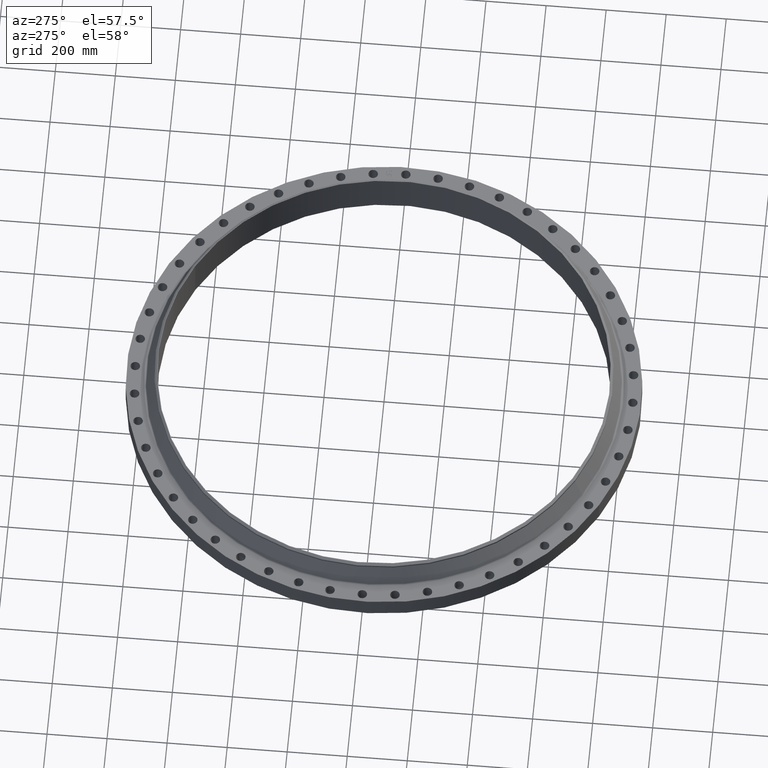
[diagram: clean part render]
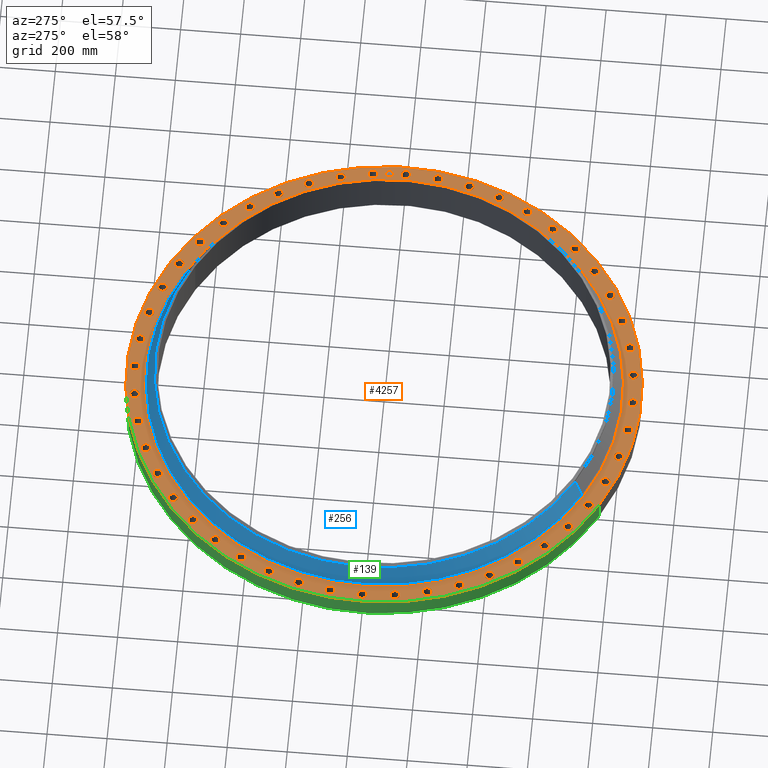
[diagram: same view with three faces highlighted in distinct colors, each labeled with its STEP entity id]
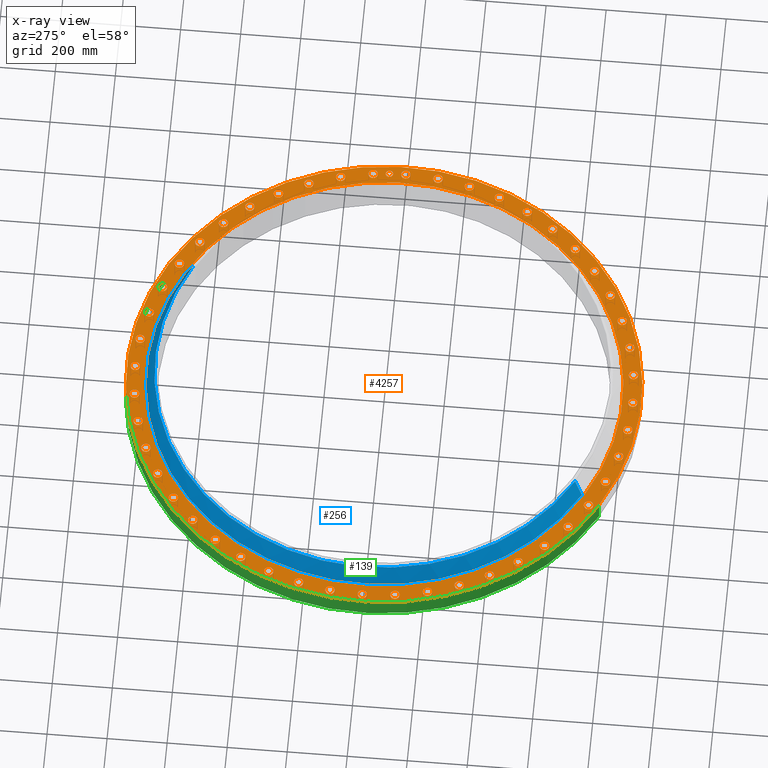
[diagram: x-ray of the same camera — body ghosted, the three highlighted faces saturated]
A machine part, auxiliary view with three faces highlighted in distinct colors.
The next image is the same camera in x-ray (body ghosted, the three faces saturated) — at least one of them is partly hidden behind the body in this view.
Their STEP definitions:

[orange] entity #4257 — the highlighted planar face has unit normal (0, 0, -1).
#65=AXIS2_PLACEMENT_3D('Circle Axis2P3D',#63,#64,$) ;
#89=AXIS2_PLACEMENT_3D('Circle Axis2P3D',#87,#88,$) ;
#123=AXIS2_PLACEMENT_3D('Circle Axis2P3D',#121,#122,$) ;
#147=AXIS2_PLACEMENT_3D('Circle Axis2P3D',#145,#146,$) ;
#164=AXIS2_PLACEMENT_3D('Circle Axis2P3D',#162,#163,$) ;
#199=AXIS2_PLACEMENT_3D('Circle Axis2P3D',#197,#198,$) ;
#1987=AXIS2_PLACEMENT_3D('Circle Axis2P3D',#1985,#1986,$) ;
#1999=AXIS2_PLACEMENT_3D('Circle Axis2P3D',#1997,#1998,$) ;
#2031=AXIS2_PLACEMENT_3D('Circle Axis2P3D',#2029,#2030,$) ;
#2043=AXIS2_PLACEMENT_3D('Circle Axis2P3D',#2041,#2042,$) ;
#2075=AXIS2_PLACEMENT_3D('Circle Axis2P3D',#2073,#2074,$) ;
#2087=AXIS2_PLACEMENT_3D('Circle Axis2P3D',#2085,#2086,$) ;
#2119=AXIS2_PLACEMENT_3D('Circle Axis2P3D',#2117,#2118,$) ;
#2131=AXIS2_PLACEMENT_3D('Circle Axis2P3D',#2129,#2130,$) ;
#2163=AXIS2_PLACEMENT_3D('Circle Axis2P3D',#2161,#2162,$) ;
#2175=AXIS2_PLACEMENT_3D('Circle Axis2P3D',#2173,#2174,$) ;
#2207=AXIS2_PLACEMENT_3D('Circle Axis2P3D',#2205,#2206,$) ;
#2219=AXIS2_PLACEMENT_3D('Circle Axis2P3D',#2217,#2218,$) ;
#2251=AXIS2_PLACEMENT_3D('Circle Axis2P3D',#2249,#2250,$) ;
#2263=AXIS2_PLACEMENT_3D('Circle Axis2P3D',#2261,#2262,$) ;
#2295=AXIS2_PLACEMENT_3D('Circle Axis2P3D',#2293,#2294,$) ;
#2307=AXIS2_PLACEMENT_3D('Circle Axis2P3D',#2305,#2306,$) ;
#2339=AXIS2_PLACEMENT_3D('Circle Axis2P3D',#2337,#2338,$) ;
#2351=AXIS2_PLACEMENT_3D('Circle Axis2P3D',#2349,#2350,$) ;
#2383=AXIS2_PLACEMENT_3D('Circle Axis2P3D',#2381,#2382,$) ;
#2395=AXIS2_PLACEMENT_3D('Circle Axis2P3D',#2393,#2394,$) ;
#2427=AXIS2_PLACEMENT_3D('Circle Axis2P3D',#2425,#2426,$) ;
#2439=AXIS2_PLACEMENT_3D('Circle Axis2P3D',#2437,#2438,$) ;
#2471=AXIS2_PLACEMENT_3D('Circle Axis2P3D',#2469,#2470,$) ;
#2483=AXIS2_PLACEMENT_3D('Circle Axis2P3D',#2481,#2482,$) ;
#2515=AXIS2_PLACEMENT_3D('Circle Axis2P3D',#2513,#2514,$) ;
#2527=AXIS2_PLACEMENT_3D('Circle Axis2P3D',#2525,#2526,$) ;
#2559=AXIS2_PLACEMENT_3D('Circle Axis2P3D',#2557,#2558,$) ;
#2571=AXIS2_PLACEMENT_3D('Circle Axis2P3D',#2569,#2570,$) ;
#2603=AXIS2_PLACEMENT_3D('Circle Axis2P3D',#2601,#2602,$) ;
#2615=AXIS2_PLACEMENT_3D('Circle Axis2P3D',#2613,#2614,$) ;
#2647=AXIS2_PLACEMENT_3D('Circle Axis2P3D',#2645,#2646,$) ;
#2659=AXIS2_PLACEMENT_3D('Circle Axis2P3D',#2657,#2658,$) ;
#2691=AXIS2_PLACEMENT_3D('Circle Axis2P3D',#2689,#2690,$) ;
#2703=AXIS2_PLACEMENT_3D('Circle Axis2P3D',#2701,#2702,$) ;
#2735=AXIS2_PLACEMENT_3D('Circle Axis2P3D',#2733,#2734,$) ;
#2747=AXIS2_PLACEMENT_3D('Circle Axis2P3D',#2745,#2746,$) ;
#2779=AXIS2_PLACEMENT_3D('Circle Axis2P3D',#2777,#2778,$) ;
#2791=AXIS2_PLACEMENT_3D('Circle Axis2P3D',#2789,#2790,$) ;
#2823=AXIS2_PLACEMENT_3D('Circle Axis2P3D',#2821,#2822,$) ;
#2835=AXIS2_PLACEMENT_3D('Circle Axis2P3D',#2833,#2834,$) ;
#2867=AXIS2_PLACEMENT_3D('Circle Axis2P3D',#2865,#2866,$) ;
#2879=AXIS2_PLACEMENT_3D('Circle Axis2P3D',#2877,#2878,$) ;
#2911=AXIS2_PLACEMENT_3D('Circle Axis2P3D',#2909,#2910,$) ;
#2923=AXIS2_PLACEMENT_3D('Circle Axis2P3D',#2921,#2922,$) ;
#2955=AXIS2_PLACEMENT_3D('Circle Axis2P3D',#2953,#2954,$) ;
#2967=AXIS2_PLACEMENT_3D('Circle Axis2P3D',#2965,#2966,$) ;
#2999=AXIS2_PLACEMENT_3D('Circle Axis2P3D',#2997,#2998,$) ;
#3011=AXIS2_PLACEMENT_3D('Circle Axis2P3D',#3009,#3010,$) ;
#3043=AXIS2_PLACEMENT_3D('Circle Axis2P3D',#3041,#3042,$) ;
#3055=AXIS2_PLACEMENT_3D('Circle Axis2P3D',#3053,#3054,$) ;
#3087=AXIS2_PLACEMENT_3D('Circle Axis2P3D',#3085,#3086,$) ;
#3099=AXIS2_PLACEMENT_3D('Circle Axis2P3D',#3097,#3098,$) ;
#3131=AXIS2_PLACEMENT_3D('Circle Axis2P3D',#3129,#3130,$) ;
#3143=AXIS2_PLACEMENT_3D('Circle Axis2P3D',#3141,#3142,$) ;
#3175=AXIS2_PLACEMENT_3D('Circle Axis2P3D',#3173,#3174,$) ;
#3187=AXIS2_PLACEMENT_3D('Circle Axis2P3D',#3185,#3186,$) ;
#3219=AXIS2_PLACEMENT_3D('Circle Axis2P3D',#3217,#3218,$) ;
#3231=AXIS2_PLACEMENT_3D('Circle Axis2P3D',#3229,#3230,$) ;
#3263=AXIS2_PLACEMENT_3D('Circle Axis2P3D',#3261,#3262,$) ;
#3275=AXIS2_PLACEMENT_3D('Circle Axis2P3D',#3273,#3274,$) ;
#3307=AXIS2_PLACEMENT_3D('Circle Axis2P3D',#3305,#3306,$) ;
#3319=AXIS2_PLACEMENT_3D('Circle Axis2P3D',#3317,#3318,$) ;
#3351=AXIS2_PLACEMENT_3D('Circle Axis2P3D',#3349,#3350,$) ;
#3363=AXIS2_PLACEMENT_3D('Circle Axis2P3D',#3361,#3362,$) ;
#3395=AXIS2_PLACEMENT_3D('Circle Axis2P3D',#3393,#3394,$) ;
#3407=AXIS2_PLACEMENT_3D('Circle Axis2P3D',#3405,#3406,$) ;
#3439=AXIS2_PLACEMENT_3D('Circle Axis2P3D',#3437,#3438,$) ;
#3451=AXIS2_PLACEMENT_3D('Circle Axis2P3D',#3449,#3450,$) ;
#3483=AXIS2_PLACEMENT_3D('Circle Axis2P3D',#3481,#3482,$) ;
#3495=AXIS2_PLACEMENT_3D('Circle Axis2P3D',#3493,#3494,$) ;
#3527=AXIS2_PLACEMENT_3D('Circle Axis2P3D',#3525,#3526,$) ;
#3539=AXIS2_PLACEMENT_3D('Circle Axis2P3D',#3537,#3538,$) ;
#3571=AXIS2_PLACEMENT_3D('Circle Axis2P3D',#3569,#3570,$) ;
#3583=AXIS2_PLACEMENT_3D('Circle Axis2P3D',#3581,#3582,$) ;
#3615=AXIS2_PLACEMENT_3D('Circle Axis2P3D',#3613,#3614,$) ;
#3627=AXIS2_PLACEMENT_3D('Circle Axis2P3D',#3625,#3626,$) ;
#3659=AXIS2_PLACEMENT_3D('Circle Axis2P3D',#3657,#3658,$) ;
#3671=AXIS2_PLACEMENT_3D('Circle Axis2P3D',#3669,#3670,$) ;
#3703=AXIS2_PLACEMENT_3D('Circle Axis2P3D',#3701,#3702,$) ;
#3715=AXIS2_PLACEMENT_3D('Circle Axis2P3D',#3713,#3714,$) ;
#3747=AXIS2_PLACEMENT_3D('Circle Axis2P3D',#3745,#3746,$) ;
#3759=AXIS2_PLACEMENT_3D('Circle Axis2P3D',#3757,#3758,$) ;
#3791=AXIS2_PLACEMENT_3D('Circle Axis2P3D',#3789,#3790,$) ;
#3803=AXIS2_PLACEMENT_3D('Circle Axis2P3D',#3801,#3802,$) ;
#3835=AXIS2_PLACEMENT_3D('Circle Axis2P3D',#3833,#3834,$) ;
#3847=AXIS2_PLACEMENT_3D('Circle Axis2P3D',#3845,#3846,$) ;
#3879=AXIS2_PLACEMENT_3D('Circle Axis2P3D',#3877,#3878,$) ;
#3891=AXIS2_PLACEMENT_3D('Circle Axis2P3D',#3889,#3890,$) ;
#3923=AXIS2_PLACEMENT_3D('Circle Axis2P3D',#3921,#3922,$) ;
#3935=AXIS2_PLACEMENT_3D('Circle Axis2P3D',#3933,#3934,$) ;
#3967=AXIS2_PLACEMENT_3D('Circle Axis2P3D',#3965,#3966,$) ;
#3979=AXIS2_PLACEMENT_3D('Circle Axis2P3D',#3977,#3978,$) ;
#4011=AXIS2_PLACEMENT_3D('Circle Axis2P3D',#4009,#4010,$) ;
#4023=AXIS2_PLACEMENT_3D('Circle Axis2P3D',#4021,#4022,$) ;
#4037=AXIS2_PLACEMENT_3D('Plane Axis2P3D',#4034,#4035,#4036) ;
#4241=AXIS2_PLACEMENT_3D('Circle Axis2P3D',#4239,#4240,$) ;
#4250=AXIS2_PLACEMENT_3D('Circle Axis2P3D',#4248,#4249,$) ;
#46=CARTESIAN_POINT('Vertex',(32.0765108989,0.299640961629,2.75000000001)) ;
#60=CARTESIAN_POINT('Vertex',(33.1734891013,-0.299640961629,2.75000000001)) ;
#63=CARTESIAN_POINT('Axis2P3D Location',(32.6250000001,0.,2.75000000001)) ;
#87=CARTESIAN_POINT('Axis2P3D Location',(32.6250000001,0.,2.75000000001)) ;
#118=CARTESIAN_POINT('Vertex',(-16.180611928,-29.6184114639,2.75000000001)) ;
#121=CARTESIAN_POINT('Axis2P3D Location',(0.,0.,2.75000000001)) ;
#125=CARTESIAN_POINT('Vertex',(16.180611928,29.6184114639,2.75000000001)) ;
#145=CARTESIAN_POINT('Axis2P3D Location',(0.,0.,2.75000000001)) ;
#162=CARTESIAN_POINT('Axis2P3D Location',(0.,0.,2.75000000001)) ;
#166=CARTESIAN_POINT('Vertex',(14.9999204068,27.4571701313,2.75000000001)) ;
#168=CARTESIAN_POINT('Vertex',(-14.9999204068,-27.4571701313,2.75000000001)) ;
#197=CARTESIAN_POINT('Axis2P3D Location',(0.,0.,2.75000000001)) ;
#1975=CARTESIAN_POINT('Vertex',(-32.0765108989,-0.299640961629,2.75000000001)) ;
#1982=CARTESIAN_POINT('Vertex',(-33.1734891013,0.299640961629,2.75000000001)) ;
#1985=CARTESIAN_POINT('Axis2P3D Location',(-32.6250000001,-3.99541018223E-015,2.75000000001)) ;
#1997=CARTESIAN_POINT('Axis2P3D Location',(-32.6250000001,-3.99541018223E-015,2.75000000001)) ;
#2019=CARTESIAN_POINT('Vertex',(31.7629809078,4.48390231901,2.75000000001)) ;
#2026=CARTESIAN_POINT('Vertex',(32.9287962971,4.03293172338,2.75000000001)) ;
#2029=CARTESIAN_POINT('Axis2P3D Location',(32.3458886024,4.2584170212,2.75000000001)) ;
#2041=CARTESIAN_POINT('Axis2P3D Location',(32.3458886024,4.2584170212,2.75000000001)) ;
#2063=CARTESIAN_POINT('Vertex',(-31.7629809078,-4.48390231901,2.75000000001)) ;
#2070=CARTESIAN_POINT('Vertex',(-32.9287962971,-4.03293172338,2.75000000001)) ;
#2073=CARTESIAN_POINT('Axis2P3D Location',(-32.3458886024,-4.2584170212,2.75000000001)) ;
#2085=CARTESIAN_POINT('Axis2P3D Location',(-32.3458886024,-4.2584170212,2.75000000001)) ;
#2107=CARTESIAN_POINT('Vertex',(31.8412028953,-3.88974733568,2.75000000001)) ;
#2114=CARTESIAN_POINT('Vertex',(32.8505743096,-4.62708670671,2.75000000001)) ;
#2117=CARTESIAN_POINT('Axis2P3D Location',(32.3458886024,-4.2584170212,2.75000000001)) ;
#2129=CARTESIAN_POINT('Axis2P3D Location',(32.3458886024,-4.2584170212,2.75000000001)) ;
#2151=CARTESIAN_POINT('Vertex',(29.5201642622,12.5519814407,2.75000000001)) ;
#2158=CARTESIAN_POINT('Vertex',(30.7629752344,12.4181125213,2.75000000001)) ;
#2161=CARTESIAN_POINT('Axis2P3D Location',(30.1415697483,12.485046981,2.75000000001)) ;
#2173=CARTESIAN_POINT('Axis2P3D Location',(30.1415697483,12.485046981,2.75000000001)) ;
#2195=CARTESIAN_POINT('Vertex',(-16.2977521343,27.6292528224,2.75000000001)) ;
#2202=CARTESIAN_POINT('Vertex',(-16.3272478659,28.8789047747,2.75000000001)) ;
#2205=CARTESIAN_POINT('Axis2P3D Location',(-16.3125000001,28.2540787986,2.75000000001)) ;
#2217=CARTESIAN_POINT('Axis2P3D Location',(-16.3125000001,28.2540787986,2.75000000001)) ;
#2239=CARTESIAN_POINT('Vertex',(15.7787587647,27.9288937841,2.75000000001)) ;
#2246=CARTESIAN_POINT('Vertex',(16.8462412354,28.5792638131,2.75000000001)) ;
#2249=CARTESIAN_POINT('Axis2P3D Location',(16.3125000001,28.2540787986,2.75000000001)) ;
#2261=CARTESIAN_POINT('Axis2P3D Location',(16.3125000001,28.2540787986,2.75000000001)) ;
#2283=CARTESIAN_POINT('Vertex',(29.7494995256,-11.9983171376,2.75000000001)) ;
#2290=CARTESIAN_POINT('Vertex',(30.533639971,-12.9717768244,2.75000000001)) ;
#2293=CARTESIAN_POINT('Axis2P3D Location',(30.1415697483,-12.485046981,2.75000000001)) ;
#2305=CARTESIAN_POINT('Axis2P3D Location',(30.1415697483,-12.485046981,2.75000000001)) ;
#2327=CARTESIAN_POINT('Vertex',(-27.9288937841,15.7787587647,2.75000000001)) ;
#2334=CARTESIAN_POINT('Vertex',(-28.5792638131,16.8462412354,2.75000000001)) ;
#2337=CARTESIAN_POINT('Axis2P3D Location',(-28.2540787986,16.3125000001,2.75000000001)) ;
#2349=CARTESIAN_POINT('Axis2P3D Location',(-28.2540787986,16.3125000001,2.75000000001)) ;
#2371=CARTESIAN_POINT('Vertex',(27.9288937841,-15.7787587647,2.75000000001)) ;
#2378=CARTESIAN_POINT('Vertex',(28.5792638131,-16.8462412354,2.75000000001)) ;
#2381=CARTESIAN_POINT('Axis2P3D Location',(28.2540787986,-16.3125000001,2.75000000001)) ;
#2393=CARTESIAN_POINT('Axis2P3D Location',(28.2540787986,-16.3125000001,2.75000000001)) ;
#2415=CARTESIAN_POINT('Vertex',(-0.299640961629,32.0765108989,2.75000000001)) ;
#2422=CARTESIAN_POINT('Vertex',(0.299640961629,33.1734891013,2.75000000001)) ;
#2425=CARTESIAN_POINT('Axis2P3D Location',(-5.99311527335E-015,32.6250000001,2.75000000001)) ;
#2437=CARTESIAN_POINT('Axis2P3D Location',(-5.99311527335E-015,32.6250000001,2.75000000001)) ;
#2459=CARTESIAN_POINT('Vertex',(25.6304169266,-19.2892214547,2.75000000001)) ;
#2466=CARTESIAN_POINT('Vertex',(26.1358885277,-20.4324617883,2.75000000001)) ;
#2469=CARTESIAN_POINT('Axis2P3D Location',(25.8831527271,-19.8608416215,2.75000000001)) ;
#2481=CARTESIAN_POINT('Axis2P3D Location',(25.8831527271,-19.8608416215,2.75000000001)) ;
#2503=CARTESIAN_POINT('Vertex',(27.6292528224,16.2977521343,2.75000000001)) ;
#2510=CARTESIAN_POINT('Vertex',(28.8789047747,16.3272478659,2.75000000001)) ;
#2513=CARTESIAN_POINT('Axis2P3D Location',(28.2540787986,16.3125000001,2.75000000001)) ;
#2525=CARTESIAN_POINT('Axis2P3D Location',(28.2540787986,16.3125000001,2.75000000001)) ;
#2547=CARTESIAN_POINT('Vertex',(22.8933965293,-22.4696402176,2.75000000001)) ;
#2554=CARTESIAN_POINT('Vertex',(23.2453209433,-23.669077255,2.75000000001)) ;
#2557=CARTESIAN_POINT('Axis2P3D Location',(23.0693587363,-23.0693587363,2.75000000001)) ;
#2569=CARTESIAN_POINT('Axis2P3D Location',(23.0693587363,-23.0693587363,2.75000000001)) ;
#2591=CARTESIAN_POINT('Vertex',(-31.0610830821,8.01258097763,2.75000000001)) ;
#2598=CARTESIAN_POINT('Vertex',(-31.9655770835,8.87536171537,2.75000000001)) ;
#2601=CARTESIAN_POINT('Axis2P3D Location',(-31.5133300828,8.4439713465,2.75000000001)) ;
#2613=CARTESIAN_POINT('Axis2P3D Location',(-31.5133300828,8.4439713465,2.75000000001)) ;
#2635=CARTESIAN_POINT('Vertex',(19.7646637703,-25.2655972066,2.75000000001)) ;
#2642=CARTESIAN_POINT('Vertex',(19.9570194727,-26.5007082476,2.75000000001)) ;
#2645=CARTESIAN_POINT('Axis2P3D Location',(19.8608416215,-25.8831527271,2.75000000001)) ;
#2657=CARTESIAN_POINT('Axis2P3D Location',(19.8608416215,-25.8831527271,2.75000000001)) ;
#2679=CARTESIAN_POINT('Vertex',(-22.8933965293,22.4696402176,2.75000000001)) ;
#2686=CARTESIAN_POINT('Vertex',(-23.2453209433,23.669077255,2.75000000001)) ;
#2689=CARTESIAN_POINT('Axis2P3D Location',(-23.0693587363,23.0693587363,2.75000000001)) ;
#2701=CARTESIAN_POINT('Axis2P3D Location',(-23.0693587363,23.0693587363,2.75000000001)) ;
#2723=CARTESIAN_POINT('Vertex',(16.2977521343,-27.6292528224,2.75000000001)) ;
#2730=CARTESIAN_POINT('Vertex',(16.3272478659,-28.8789047747,2.75000000001)) ;
#2733=CARTESIAN_POINT('Axis2P3D Location',(16.3125000001,-28.2540787986,2.75000000001)) ;
#2745=CARTESIAN_POINT('Axis2P3D Location',(16.3125000001,-28.2540787986,2.75000000001)) ;
#2767=CARTESIAN_POINT('Vertex',(-8.59144286454,30.905977507,2.75000000001)) ;
#2774=CARTESIAN_POINT('Vertex',(-8.29649982847,32.1206826586,2.75000000001)) ;
#2777=CARTESIAN_POINT('Axis2P3D Location',(-8.4439713465,31.5133300828,2.75000000001)) ;
#2789=CARTESIAN_POINT('Axis2P3D Location',(-8.4439713465,31.5133300828,2.75000000001)) ;
#2811=CARTESIAN_POINT('Vertex',(12.5519814407,-29.5201642622,2.75000000001)) ;
#2818=CARTESIAN_POINT('Vertex',(12.4181125213,-30.7629752344,2.75000000001)) ;
#2821=CARTESIAN_POINT('Axis2P3D Location',(12.485046981,-30.1415697483,2.75000000001)) ;
#2833=CARTESIAN_POINT('Axis2P3D Location',(12.485046981,-30.1415697483,2.75000000001)) ;
#2855=CARTESIAN_POINT('Vertex',(8.01258097763,31.0610830821,2.75000000001)) ;
#2862=CARTESIAN_POINT('Vertex',(8.87536171537,31.9655770835,2.75000000001)) ;
#2865=CARTESIAN_POINT('Axis2P3D Location',(8.4439713465,31.5133300828,2.75000000001)) ;
#2877=CARTESIAN_POINT('Axis2P3D Location',(8.4439713465,31.5133300828,2.75000000001)) ;
#2899=CARTESIAN_POINT('Vertex',(8.59144286454,-30.905977507,2.75000000001)) ;
#2906=CARTESIAN_POINT('Vertex',(8.29649982847,-32.1206826586,2.75000000001)) ;
#2909=CARTESIAN_POINT('Axis2P3D Location',(8.4439713465,-31.5133300828,2.75000000001)) ;
#2921=CARTESIAN_POINT('Axis2P3D Location',(8.4439713465,-31.5133300828,2.75000000001)) ;
#2943=CARTESIAN_POINT('Vertex',(22.4696402176,22.8933965293,2.75000000001)) ;
#2950=CARTESIAN_POINT('Vertex',(23.669077255,23.2453209433,2.75000000001)) ;
#2953=CARTESIAN_POINT('Axis2P3D Location',(23.0693587363,23.0693587363,2.75000000001)) ;
#2965=CARTESIAN_POINT('Axis2P3D Location',(23.0693587363,23.0693587363,2.75000000001)) ;
#2987=CARTESIAN_POINT('Vertex',(4.48390231901,-31.7629809078,2.75000000001)) ;
#2994=CARTESIAN_POINT('Vertex',(4.03293172338,-32.9287962971,2.75000000001)) ;
#2997=CARTESIAN_POINT('Axis2P3D Location',(4.2584170212,-32.3458886024,2.75000000001)) ;
#3009=CARTESIAN_POINT('Axis2P3D Location',(4.2584170212,-32.3458886024,2.75000000001)) ;
#3031=CARTESIAN_POINT('Vertex',(30.905977507,8.59144286454,2.75000000001)) ;
#3038=CARTESIAN_POINT('Vertex',(32.1206826586,8.29649982847,2.75000000001)) ;
#3041=CARTESIAN_POINT('Axis2P3D Location',(31.5133300828,8.4439713465,2.75000000001)) ;
#3053=CARTESIAN_POINT('Axis2P3D Location',(31.5133300828,8.4439713465,2.75000000001)) ;
#3075=CARTESIAN_POINT('Vertex',(0.299640961629,-32.0765108989,2.75000000001)) ;
#3082=CARTESIAN_POINT('Vertex',(-0.299640961629,-33.1734891013,2.75000000001)) ;
#3085=CARTESIAN_POINT('Axis2P3D Location',(1.99770509112E-015,-32.6250000001,2.75000000001)) ;
#3097=CARTESIAN_POINT('Axis2P3D Location',(1.99770509112E-015,-32.6250000001,2.75000000001)) ;
#3119=CARTESIAN_POINT('Vertex',(-31.8412028953,3.88974733568,2.75000000001)) ;
#3126=CARTESIAN_POINT('Vertex',(-32.8505743096,4.62708670671,2.75000000001)) ;
#3129=CARTESIAN_POINT('Axis2P3D Location',(-32.3458886024,4.2584170212,2.75000000001)) ;
#3141=CARTESIAN_POINT('Axis2P3D Location',(-32.3458886024,4.2584170212,2.75000000001)) ;
#3163=CARTESIAN_POINT('Vertex',(-3.88974733568,-31.8412028953,2.75000000001)) ;
#3170=CARTESIAN_POINT('Vertex',(-4.62708670671,-32.8505743096,2.75000000001)) ;
#3173=CARTESIAN_POINT('Axis2P3D Location',(-4.2584170212,-32.3458886024,2.75000000001)) ;
#3185=CARTESIAN_POINT('Axis2P3D Location',(-4.2584170212,-32.3458886024,2.75000000001)) ;
#3207=CARTESIAN_POINT('Vertex',(-29.7494995256,11.9983171376,2.75000000001)) ;
#3214=CARTESIAN_POINT('Vertex',(-30.533639971,12.9717768244,2.75000000001)) ;
#3217=CARTESIAN_POINT('Axis2P3D Location',(-30.1415697483,12.485046981,2.75000000001)) ;
#3229=CARTESIAN_POINT('Axis2P3D Location',(-30.1415697483,12.485046981,2.75000000001)) ;
#3251=CARTESIAN_POINT('Vertex',(-8.01258097763,-31.0610830821,2.75000000001)) ;
#3258=CARTESIAN_POINT('Vertex',(-8.87536171537,-31.9655770835,2.75000000001)) ;
#3261=CARTESIAN_POINT('Axis2P3D Location',(-8.4439713465,-31.5133300828,2.75000000001)) ;
#3273=CARTESIAN_POINT('Axis2P3D Location',(-8.4439713465,-31.5133300828,2.75000000001)) ;
#3295=CARTESIAN_POINT('Vertex',(-25.6304169266,19.2892214547,2.75000000001)) ;
#3302=CARTESIAN_POINT('Vertex',(-26.1358885277,20.4324617883,2.75000000001)) ;
#3305=CARTESIAN_POINT('Axis2P3D Location',(-25.8831527271,19.8608416215,2.75000000001)) ;
#3317=CARTESIAN_POINT('Axis2P3D Location',(-25.8831527271,19.8608416215,2.75000000001)) ;
#3339=CARTESIAN_POINT('Vertex',(-11.9983171376,-29.7494995256,2.75000000001)) ;
#3346=CARTESIAN_POINT('Vertex',(-12.9717768244,-30.533639971,2.75000000001)) ;
#3349=CARTESIAN_POINT('Axis2P3D Location',(-12.485046981,-30.1415697483,2.75000000001)) ;
#3361=CARTESIAN_POINT('Axis2P3D Location',(-12.485046981,-30.1415697483,2.75000000001)) ;
#3383=CARTESIAN_POINT('Vertex',(-19.7646637703,25.2655972066,2.75000000001)) ;
#3390=CARTESIAN_POINT('Vertex',(-19.9570194727,26.5007082476,2.75000000001)) ;
#3393=CARTESIAN_POINT('Axis2P3D Location',(-19.8608416215,25.8831527271,2.75000000001)) ;
#3405=CARTESIAN_POINT('Axis2P3D Location',(-19.8608416215,25.8831527271,2.75000000001)) ;
#3427=CARTESIAN_POINT('Vertex',(-15.7787587647,-27.9288937841,2.75000000001)) ;
#3434=CARTESIAN_POINT('Vertex',(-16.8462412354,-28.5792638131,2.75000000001)) ;
#3437=CARTESIAN_POINT('Axis2P3D Location',(-16.3125000001,-28.2540787986,2.75000000001)) ;
#3449=CARTESIAN_POINT('Axis2P3D Location',(-16.3125000001,-28.2540787986,2.75000000001)) ;
#3471=CARTESIAN_POINT('Vertex',(-12.5519814407,29.5201642622,2.75000000001)) ;
#3478=CARTESIAN_POINT('Vertex',(-12.4181125213,30.7629752344,2.75000000001)) ;
#3481=CARTESIAN_POINT('Axis2P3D Location',(-12.485046981,30.1415697483,2.75000000001)) ;
#3493=CARTESIAN_POINT('Axis2P3D Location',(-12.485046981,30.1415697483,2.75000000001)) ;
#3515=CARTESIAN_POINT('Vertex',(-19.2892214547,-25.6304169266,2.75000000001)) ;
#3522=CARTESIAN_POINT('Vertex',(-20.4324617883,-26.1358885277,2.75000000001)) ;
#3525=CARTESIAN_POINT('Axis2P3D Location',(-19.8608416215,-25.8831527271,2.75000000001)) ;
#3537=CARTESIAN_POINT('Axis2P3D Location',(-19.8608416215,-25.8831527271,2.75000000001)) ;
#3559=CARTESIAN_POINT('Vertex',(-4.48390231901,31.7629809078,2.75000000001)) ;
#3566=CARTESIAN_POINT('Vertex',(-4.03293172338,32.9287962971,2.75000000001)) ;
#3569=CARTESIAN_POINT('Axis2P3D Location',(-4.2584170212,32.3458886024,2.75000000001)) ;
#3581=CARTESIAN_POINT('Axis2P3D Location',(-4.2584170212,32.3458886024,2.75000000001)) ;
#3603=CARTESIAN_POINT('Vertex',(-22.4696402176,-22.8933965293,2.75000000001)) ;
#3610=CARTESIAN_POINT('Vertex',(-23.669077255,-23.2453209433,2.75000000001)) ;
#3613=CARTESIAN_POINT('Axis2P3D Location',(-23.0693587363,-23.0693587363,2.75000000001)) ;
#3625=CARTESIAN_POINT('Axis2P3D Location',(-23.0693587363,-23.0693587363,2.75000000001)) ;
#3647=CARTESIAN_POINT('Vertex',(3.88974733568,31.8412028953,2.75000000001)) ;
#3654=CARTESIAN_POINT('Vertex',(4.62708670671,32.8505743096,2.75000000001)) ;
#3657=CARTESIAN_POINT('Axis2P3D Location',(4.2584170212,32.3458886024,2.75000000001)) ;
#3669=CARTESIAN_POINT('Axis2P3D Location',(4.2584170212,32.3458886024,2.75000000001)) ;
#3691=CARTESIAN_POINT('Vertex',(-25.2655972066,-19.7646637703,2.75000000001)) ;
#3698=CARTESIAN_POINT('Vertex',(-26.5007082476,-19.9570194727,2.75000000001)) ;
#3701=CARTESIAN_POINT('Axis2P3D Location',(-25.8831527271,-19.8608416215,2.75000000001)) ;
#3713=CARTESIAN_POINT('Axis2P3D Location',(-25.8831527271,-19.8608416215,2.75000000001)) ;
#3735=CARTESIAN_POINT('Vertex',(11.9983171376,29.7494995256,2.75000000001)) ;
#3742=CARTESIAN_POINT('Vertex',(12.9717768244,30.533639971,2.75000000001)) ;
#3745=CARTESIAN_POINT('Axis2P3D Location',(12.485046981,30.1415697483,2.75000000001)) ;
#3757=CARTESIAN_POINT('Axis2P3D Location',(12.485046981,30.1415697483,2.75000000001)) ;
#3779=CARTESIAN_POINT('Vertex',(-27.6292528224,-16.2977521343,2.75000000001)) ;
#3786=CARTESIAN_POINT('Vertex',(-28.8789047747,-16.3272478659,2.75000000001)) ;
#3789=CARTESIAN_POINT('Axis2P3D Location',(-28.2540787986,-16.3125000001,2.75000000001)) ;
#3801=CARTESIAN_POINT('Axis2P3D Location',(-28.2540787986,-16.3125000001,2.75000000001)) ;
#3823=CARTESIAN_POINT('Vertex',(19.2892214547,25.6304169266,2.75000000001)) ;
#3830=CARTESIAN_POINT('Vertex',(20.4324617883,26.1358885277,2.75000000001)) ;
#3833=CARTESIAN_POINT('Axis2P3D Location',(19.8608416215,25.8831527271,2.75000000001)) ;
#3845=CARTESIAN_POINT('Axis2P3D Location',(19.8608416215,25.8831527271,2.75000000001)) ;
#3867=CARTESIAN_POINT('Vertex',(-29.5201642622,-12.5519814407,2.75000000001)) ;
#3874=CARTESIAN_POINT('Vertex',(-30.7629752344,-12.4181125213,2.75000000001)) ;
#3877=CARTESIAN_POINT('Axis2P3D Location',(-30.1415697483,-12.485046981,2.75000000001)) ;
#3889=CARTESIAN_POINT('Axis2P3D Location',(-30.1415697483,-12.485046981,2.75000000001)) ;
#3911=CARTESIAN_POINT('Vertex',(25.2655972066,19.7646637703,2.75000000001)) ;
#3918=CARTESIAN_POINT('Vertex',(26.5007082476,19.9570194727,2.75000000001)) ;
#3921=CARTESIAN_POINT('Axis2P3D Location',(25.8831527271,19.8608416215,2.75000000001)) ;
#3933=CARTESIAN_POINT('Axis2P3D Location',(25.8831527271,19.8608416215,2.75000000001)) ;
#3955=CARTESIAN_POINT('Vertex',(-30.905977507,-8.59144286454,2.75000000001)) ;
#3962=CARTESIAN_POINT('Vertex',(-32.1206826586,-8.29649982847,2.75000000001)) ;
#3965=CARTESIAN_POINT('Axis2P3D Location',(-31.5133300828,-8.4439713465,2.75000000001)) ;
#3977=CARTESIAN_POINT('Axis2P3D Location',(-31.5133300828,-8.4439713465,2.75000000001)) ;
#3999=CARTESIAN_POINT('Vertex',(31.0610830821,-8.01258097763,2.75000000001)) ;
#4006=CARTESIAN_POINT('Vertex',(31.9655770835,-8.87536171537,2.75000000001)) ;
#4009=CARTESIAN_POINT('Axis2P3D Location',(31.5133300828,-8.4439713465,2.75000000001)) ;
#4021=CARTESIAN_POINT('Axis2P3D Location',(31.5133300828,-8.4439713465,2.75000000001)) ;
#4034=CARTESIAN_POINT('Axis2P3D Location',(0.,33.7500000001,2.75000000001)) ;
#4239=CARTESIAN_POINT('Axis2P3D Location',(32.5551473708,2.13377709114,2.75000000001)) ;
#4243=CARTESIAN_POINT('Vertex',(32.5224458811,2.63270540921,2.75000000001)) ;
#4245=CARTESIAN_POINT('Vertex',(32.5878488605,1.63484877307,2.75000000001)) ;
#4248=CARTESIAN_POINT('Axis2P3D Location',(32.5551473708,2.13377709114,2.75000000001)) ;
#64=DIRECTION('Axis2P3D Direction',(0.,-0.,-0.0393700787402)) ;
#88=DIRECTION('Axis2P3D Direction',(0.,-0.,-0.0393700787402)) ;
#122=DIRECTION('Axis2P3D Direction',(0.,0.,-0.0393700787402)) ;
#146=DIRECTION('Axis2P3D Direction',(0.,0.,-0.0393700787402)) ;
#163=DIRECTION('Axis2P3D Direction',(0.,0.,-0.0393700787402)) ;
#198=DIRECTION('Axis2P3D Direction',(0.,0.,-0.0393700787402)) ;
#1986=DIRECTION('Axis2P3D Direction',(-0.,0.,-0.0393700787402)) ;
#1998=DIRECTION('Axis2P3D Direction',(-0.,0.,-0.0393700787402)) ;
#2030=DIRECTION('Axis2P3D Direction',(0.,0.,-0.0393700787402)) ;
#2042=DIRECTION('Axis2P3D Direction',(0.,0.,-0.0393700787402)) ;
#2074=DIRECTION('Axis2P3D Direction',(-0.,0.,-0.0393700787402)) ;
#2086=DIRECTION('Axis2P3D Direction',(-0.,0.,-0.0393700787402)) ;
#2118=DIRECTION('Axis2P3D Direction',(0.,-0.,-0.0393700787402)) ;
#2130=DIRECTION('Axis2P3D Direction',(0.,-0.,-0.0393700787402)) ;
#2162=DIRECTION('Axis2P3D Direction',(0.,0.,-0.0393700787402)) ;
#2174=DIRECTION('Axis2P3D Direction',(0.,0.,-0.0393700787402)) ;
#2206=DIRECTION('Axis2P3D Direction',(0.,0.,-0.0393700787402)) ;
#2218=DIRECTION('Axis2P3D Direction',(0.,0.,-0.0393700787402)) ;
#2250=DIRECTION('Axis2P3D Direction',(0.,0.,-0.0393700787402)) ;
#2262=DIRECTION('Axis2P3D Direction',(0.,0.,-0.0393700787402)) ;
#2294=DIRECTION('Axis2P3D Direction',(0.,-0.,-0.0393700787402)) ;
#2306=DIRECTION('Axis2P3D Direction',(0.,-0.,-0.0393700787402)) ;
#2338=DIRECTION('Axis2P3D Direction',(0.,0.,-0.0393700787402)) ;
#2350=DIRECTION('Axis2P3D Direction',(0.,0.,-0.0393700787402)) ;
#2382=DIRECTION('Axis2P3D Direction',(0.,-0.,-0.0393700787402)) ;
#2394=DIRECTION('Axis2P3D Direction',(0.,-0.,-0.0393700787402)) ;
#2426=DIRECTION('Axis2P3D Direction',(0.,0.,-0.0393700787402)) ;
#2438=DIRECTION('Axis2P3D Direction',(0.,0.,-0.0393700787402)) ;
#2470=DIRECTION('Axis2P3D Direction',(0.,-0.,-0.0393700787402)) ;
#2482=DIRECTION('Axis2P3D Direction',(0.,-0.,-0.0393700787402)) ;
#2514=DIRECTION('Axis2P3D Direction',(0.,0.,-0.0393700787402)) ;
#2526=DIRECTION('Axis2P3D Direction',(0.,0.,-0.0393700787402)) ;
#2558=DIRECTION('Axis2P3D Direction',(0.,-0.,-0.0393700787402)) ;
#2570=DIRECTION('Axis2P3D Direction',(0.,-0.,-0.0393700787402)) ;
#2602=DIRECTION('Axis2P3D Direction',(0.,0.,-0.0393700787402)) ;
#2614=DIRECTION('Axis2P3D Direction',(0.,0.,-0.0393700787402)) ;
#2646=DIRECTION('Axis2P3D Direction',(0.,-0.,-0.0393700787402)) ;
#2658=DIRECTION('Axis2P3D Direction',(0.,-0.,-0.0393700787402)) ;
#2690=DIRECTION('Axis2P3D Direction',(0.,0.,-0.0393700787402)) ;
#2702=DIRECTION('Axis2P3D Direction',(0.,0.,-0.0393700787402)) ;
#2734=DIRECTION('Axis2P3D Direction',(0.,-0.,-0.0393700787402)) ;
#2746=DIRECTION('Axis2P3D Direction',(0.,-0.,-0.0393700787402)) ;
#2778=DIRECTION('Axis2P3D Direction',(0.,0.,-0.0393700787402)) ;
#2790=DIRECTION('Axis2P3D Direction',(0.,0.,-0.0393700787402)) ;
#2822=DIRECTION('Axis2P3D Direction',(0.,-0.,-0.0393700787402)) ;
#2834=DIRECTION('Axis2P3D Direction',(0.,-0.,-0.0393700787402)) ;
#2866=DIRECTION('Axis2P3D Direction',(0.,0.,-0.0393700787402)) ;
#2878=DIRECTION('Axis2P3D Direction',(0.,0.,-0.0393700787402)) ;
#2910=DIRECTION('Axis2P3D Direction',(0.,-0.,-0.0393700787402)) ;
#2922=DIRECTION('Axis2P3D Direction',(0.,-0.,-0.0393700787402)) ;
#2954=DIRECTION('Axis2P3D Direction',(0.,0.,-0.0393700787402)) ;
#2966=DIRECTION('Axis2P3D Direction',(0.,0.,-0.0393700787402)) ;
#2998=DIRECTION('Axis2P3D Direction',(0.,-0.,-0.0393700787402)) ;
#3010=DIRECTION('Axis2P3D Direction',(0.,-0.,-0.0393700787402)) ;
#3042=DIRECTION('Axis2P3D Direction',(0.,0.,-0.0393700787402)) ;
#3054=DIRECTION('Axis2P3D Direction',(0.,0.,-0.0393700787402)) ;
#3086=DIRECTION('Axis2P3D Direction',(0.,-0.,-0.0393700787402)) ;
#3098=DIRECTION('Axis2P3D Direction',(0.,-0.,-0.0393700787402)) ;
#3130=DIRECTION('Axis2P3D Direction',(0.,0.,-0.0393700787402)) ;
#3142=DIRECTION('Axis2P3D Direction',(0.,0.,-0.0393700787402)) ;
#3174=DIRECTION('Axis2P3D Direction',(-0.,0.,-0.0393700787402)) ;
#3186=DIRECTION('Axis2P3D Direction',(-0.,0.,-0.0393700787402)) ;
#3218=DIRECTION('Axis2P3D Direction',(0.,0.,-0.0393700787402)) ;
#3230=DIRECTION('Axis2P3D Direction',(0.,0.,-0.0393700787402)) ;
#3262=DIRECTION('Axis2P3D Direction',(-0.,0.,-0.0393700787402)) ;
#3274=DIRECTION('Axis2P3D Direction',(-0.,0.,-0.0393700787402)) ;
#3306=DIRECTION('Axis2P3D Direction',(0.,0.,-0.0393700787402)) ;
#3318=DIRECTION('Axis2P3D Direction',(0.,0.,-0.0393700787402)) ;
#3350=DIRECTION('Axis2P3D Direction',(-0.,0.,-0.0393700787402)) ;
#3362=DIRECTION('Axis2P3D Direction',(-0.,0.,-0.0393700787402)) ;
#3394=DIRECTION('Axis2P3D Direction',(0.,0.,-0.0393700787402)) ;
#3406=DIRECTION('Axis2P3D Direction',(0.,0.,-0.0393700787402)) ;
#3438=DIRECTION('Axis2P3D Direction',(-0.,0.,-0.0393700787402)) ;
#3450=DIRECTION('Axis2P3D Direction',(-0.,0.,-0.0393700787402)) ;
#3482=DIRECTION('Axis2P3D Direction',(0.,0.,-0.0393700787402)) ;
#3494=DIRECTION('Axis2P3D Direction',(0.,0.,-0.0393700787402)) ;
#3526=DIRECTION('Axis2P3D Direction',(-0.,0.,-0.0393700787402)) ;
#3538=DIRECTION('Axis2P3D Direction',(-0.,0.,-0.0393700787402)) ;
#3570=DIRECTION('Axis2P3D Direction',(0.,0.,-0.0393700787402)) ;
#3582=DIRECTION('Axis2P3D Direction',(0.,0.,-0.0393700787402)) ;
#3614=DIRECTION('Axis2P3D Direction',(-0.,0.,-0.0393700787402)) ;
#3626=DIRECTION('Axis2P3D Direction',(-0.,0.,-0.0393700787402)) ;
#3658=DIRECTION('Axis2P3D Direction',(0.,0.,-0.0393700787402)) ;
#3670=DIRECTION('Axis2P3D Direction',(0.,0.,-0.0393700787402)) ;
#3702=DIRECTION('Axis2P3D Direction',(-0.,0.,-0.0393700787402)) ;
#3714=DIRECTION('Axis2P3D Direction',(-0.,0.,-0.0393700787402)) ;
#3746=DIRECTION('Axis2P3D Direction',(0.,0.,-0.0393700787402)) ;
#3758=DIRECTION('Axis2P3D Direction',(0.,0.,-0.0393700787402)) ;
#3790=DIRECTION('Axis2P3D Direction',(-0.,0.,-0.0393700787402)) ;
#3802=DIRECTION('Axis2P3D Direction',(-0.,0.,-0.0393700787402)) ;
#3834=DIRECTION('Axis2P3D Direction',(0.,0.,-0.0393700787402)) ;
#3846=DIRECTION('Axis2P3D Direction',(0.,0.,-0.0393700787402)) ;
#3878=DIRECTION('Axis2P3D Direction',(-0.,0.,-0.0393700787402)) ;
#3890=DIRECTION('Axis2P3D Direction',(-0.,0.,-0.0393700787402)) ;
#3922=DIRECTION('Axis2P3D Direction',(0.,0.,-0.0393700787402)) ;
#3934=DIRECTION('Axis2P3D Direction',(0.,0.,-0.0393700787402)) ;
#3966=DIRECTION('Axis2P3D Direction',(-0.,0.,-0.0393700787402)) ;
#3978=DIRECTION('Axis2P3D Direction',(-0.,0.,-0.0393700787402)) ;
#4010=DIRECTION('Axis2P3D Direction',(0.,-0.,-0.0393700787402)) ;
#4022=DIRECTION('Axis2P3D Direction',(0.,-0.,-0.0393700787402)) ;
#4035=DIRECTION('Axis2P3D Direction',(0.,0.,-0.0393700787402)) ;
#4036=DIRECTION('Axis2P3D XDirection',(0.0393700787402,0.,0.)) ;
#4240=DIRECTION('Axis2P3D Direction',(0.,0.,-0.0393700787402)) ;
#4249=DIRECTION('Axis2P3D Direction',(0.,0.,-0.0393700787402)) ;
#4040=ORIENTED_EDGE('',*,*,#149,.F.) ;
#4041=ORIENTED_EDGE('',*,*,#127,.F.) ;
#4044=ORIENTED_EDGE('',*,*,#67,.T.) ;
#4045=ORIENTED_EDGE('',*,*,#91,.T.) ;
#4048=ORIENTED_EDGE('',*,*,#201,.T.) ;
#4049=ORIENTED_EDGE('',*,*,#170,.T.) ;
#4052=ORIENTED_EDGE('',*,*,#2133,.T.) ;
#4053=ORIENTED_EDGE('',*,*,#2121,.T.) ;
#4056=ORIENTED_EDGE('',*,*,#4025,.T.) ;
#4057=ORIENTED_EDGE('',*,*,#4013,.T.) ;
#4060=ORIENTED_EDGE('',*,*,#2309,.T.) ;
#4061=ORIENTED_EDGE('',*,*,#2297,.T.) ;
#4064=ORIENTED_EDGE('',*,*,#2397,.T.) ;
#4065=ORIENTED_EDGE('',*,*,#2385,.T.) ;
#4068=ORIENTED_EDGE('',*,*,#2485,.T.) ;
#4069=ORIENTED_EDGE('',*,*,#2473,.T.) ;
#4072=ORIENTED_EDGE('',*,*,#2573,.T.) ;
#4073=ORIENTED_EDGE('',*,*,#2561,.T.) ;
#4076=ORIENTED_EDGE('',*,*,#2661,.T.) ;
#4077=ORIENTED_EDGE('',*,*,#2649,.T.) ;
#4080=ORIENTED_EDGE('',*,*,#2749,.T.) ;
#4081=ORIENTED_EDGE('',*,*,#2737,.T.) ;
#4084=ORIENTED_EDGE('',*,*,#2837,.T.) ;
#4085=ORIENTED_EDGE('',*,*,#2825,.T.) ;
#4088=ORIENTED_EDGE('',*,*,#2925,.T.) ;
#4089=ORIENTED_EDGE('',*,*,#2913,.T.) ;
#4092=ORIENTED_EDGE('',*,*,#3013,.T.) ;
#4093=ORIENTED_EDGE('',*,*,#3001,.T.) ;
#4096=ORIENTED_EDGE('',*,*,#3101,.T.) ;
#4097=ORIENTED_EDGE('',*,*,#3089,.T.) ;
#4100=ORIENTED_EDGE('',*,*,#3189,.T.) ;
#4101=ORIENTED_EDGE('',*,*,#3177,.T.) ;
#4104=ORIENTED_EDGE('',*,*,#3277,.T.) ;
#4105=ORIENTED_EDGE('',*,*,#3265,.T.) ;
#4108=ORIENTED_EDGE('',*,*,#3365,.T.) ;
#4109=ORIENTED_EDGE('',*,*,#3353,.T.) ;
#4112=ORIENTED_EDGE('',*,*,#3453,.T.) ;
#4113=ORIENTED_EDGE('',*,*,#3441,.T.) ;
#4116=ORIENTED_EDGE('',*,*,#3541,.T.) ;
#4117=ORIENTED_EDGE('',*,*,#3529,.T.) ;
#4120=ORIENTED_EDGE('',*,*,#3629,.T.) ;
#4121=ORIENTED_EDGE('',*,*,#3617,.T.) ;
#4124=ORIENTED_EDGE('',*,*,#3717,.T.) ;
#4125=ORIENTED_EDGE('',*,*,#3705,.T.) ;
#4128=ORIENTED_EDGE('',*,*,#3805,.T.) ;
#4129=ORIENTED_EDGE('',*,*,#3793,.T.) ;
#4132=ORIENTED_EDGE('',*,*,#3893,.T.) ;
#4133=ORIENTED_EDGE('',*,*,#3881,.T.) ;
#4136=ORIENTED_EDGE('',*,*,#3981,.T.) ;
#4137=ORIENTED_EDGE('',*,*,#3969,.T.) ;
#4140=ORIENTED_EDGE('',*,*,#2089,.T.) ;
#4141=ORIENTED_EDGE('',*,*,#2077,.T.) ;
#4144=ORIENTED_EDGE('',*,*,#2001,.T.) ;
#4145=ORIENTED_EDGE('',*,*,#1989,.T.) ;
#4148=ORIENTED_EDGE('',*,*,#3145,.T.) ;
#4149=ORIENTED_EDGE('',*,*,#3133,.T.) ;
#4152=ORIENTED_EDGE('',*,*,#2617,.T.) ;
#4153=ORIENTED_EDGE('',*,*,#2605,.T.) ;
#4156=ORIENTED_EDGE('',*,*,#3233,.T.) ;
#4157=ORIENTED_EDGE('',*,*,#3221,.T.) ;
#4160=ORIENTED_EDGE('',*,*,#2353,.T.) ;
#4161=ORIENTED_EDGE('',*,*,#2341,.T.) ;
#4164=ORIENTED_EDGE('',*,*,#3321,.T.) ;
#4165=ORIENTED_EDGE('',*,*,#3309,.T.) ;
#4168=ORIENTED_EDGE('',*,*,#2705,.T.) ;
#4169=ORIENTED_EDGE('',*,*,#2693,.T.) ;
#4172=ORIENTED_EDGE('',*,*,#3409,.T.) ;
#4173=ORIENTED_EDGE('',*,*,#3397,.T.) ;
#4176=ORIENTED_EDGE('',*,*,#2221,.T.) ;
#4177=ORIENTED_EDGE('',*,*,#2209,.T.) ;
#4180=ORIENTED_EDGE('',*,*,#3497,.T.) ;
#4181=ORIENTED_EDGE('',*,*,#3485,.T.) ;
#4184=ORIENTED_EDGE('',*,*,#2793,.T.) ;
#4185=ORIENTED_EDGE('',*,*,#2781,.T.) ;
#4188=ORIENTED_EDGE('',*,*,#3585,.T.) ;
#4189=ORIENTED_EDGE('',*,*,#3573,.T.) ;
#4192=ORIENTED_EDGE('',*,*,#2441,.T.) ;
#4193=ORIENTED_EDGE('',*,*,#2429,.T.) ;
#4196=ORIENTED_EDGE('',*,*,#3673,.T.) ;
#4197=ORIENTED_EDGE('',*,*,#3661,.T.) ;
#4200=ORIENTED_EDGE('',*,*,#2881,.T.) ;
#4201=ORIENTED_EDGE('',*,*,#2869,.T.) ;
#4204=ORIENTED_EDGE('',*,*,#3761,.T.) ;
#4205=ORIENTED_EDGE('',*,*,#3749,.T.) ;
#4208=ORIENTED_EDGE('',*,*,#2265,.T.) ;
#4209=ORIENTED_EDGE('',*,*,#2253,.T.) ;
#4212=ORIENTED_EDGE('',*,*,#3849,.T.) ;
#4213=ORIENTED_EDGE('',*,*,#3837,.T.) ;
#4216=ORIENTED_EDGE('',*,*,#2969,.T.) ;
#4217=ORIENTED_EDGE('',*,*,#2957,.T.) ;
#4220=ORIENTED_EDGE('',*,*,#3937,.T.) ;
#4221=ORIENTED_EDGE('',*,*,#3925,.T.) ;
#4224=ORIENTED_EDGE('',*,*,#2529,.T.) ;
#4225=ORIENTED_EDGE('',*,*,#2517,.T.) ;
#4228=ORIENTED_EDGE('',*,*,#2177,.T.) ;
#4229=ORIENTED_EDGE('',*,*,#2165,.T.) ;
#4232=ORIENTED_EDGE('',*,*,#3057,.T.) ;
#4233=ORIENTED_EDGE('',*,*,#3045,.T.) ;
#4236=ORIENTED_EDGE('',*,*,#2045,.T.) ;
#4237=ORIENTED_EDGE('',*,*,#2033,.T.) ;
#4254=ORIENTED_EDGE('',*,*,#4247,.T.) ;
#4255=ORIENTED_EDGE('',*,*,#4252,.T.) ;
#4046=FACE_BOUND('',#4043,.T.) ;
#4050=FACE_BOUND('',#4047,.T.) ;
#4054=FACE_BOUND('',#4051,.T.) ;
#4058=FACE_BOUND('',#4055,.T.) ;
#4062=FACE_BOUND('',#4059,.T.) ;
#4066=FACE_BOUND('',#4063,.T.) ;
#4070=FACE_BOUND('',#4067,.T.) ;
#4074=FACE_BOUND('',#4071,.T.) ;
#4078=FACE_BOUND('',#4075,.T.) ;
#4082=FACE_BOUND('',#4079,.T.) ;
#4086=FACE_BOUND('',#4083,.T.) ;
#4090=FACE_BOUND('',#4087,.T.) ;
#4094=FACE_BOUND('',#4091,.T.) ;
#4098=FACE_BOUND('',#4095,.T.) ;
#4102=FACE_BOUND('',#4099,.T.) ;
#4106=FACE_BOUND('',#4103,.T.) ;
#4110=FACE_BOUND('',#4107,.T.) ;
#4114=FACE_BOUND('',#4111,.T.) ;
#4118=FACE_BOUND('',#4115,.T.) ;
#4122=FACE_BOUND('',#4119,.T.) ;
#4126=FACE_BOUND('',#4123,.T.) ;
#4130=FACE_BOUND('',#4127,.T.) ;
#4134=FACE_BOUND('',#4131,.T.) ;
#4138=FACE_BOUND('',#4135,.T.) ;
#4142=FACE_BOUND('',#4139,.T.) ;
#4146=FACE_BOUND('',#4143,.T.) ;
#4150=FACE_BOUND('',#4147,.T.) ;
#4154=FACE_BOUND('',#4151,.T.) ;
#4158=FACE_BOUND('',#4155,.T.) ;
#4162=FACE_BOUND('',#4159,.T.) ;
#4166=FACE_BOUND('',#4163,.T.) ;
#4170=FACE_BOUND('',#4167,.T.) ;
#4174=FACE_BOUND('',#4171,.T.) ;
#4178=FACE_BOUND('',#4175,.T.) ;
#4182=FACE_BOUND('',#4179,.T.) ;
#4186=FACE_BOUND('',#4183,.T.) ;
#4190=FACE_BOUND('',#4187,.T.) ;
#4194=FACE_BOUND('',#4191,.T.) ;
#4198=FACE_BOUND('',#4195,.T.) ;
#4202=FACE_BOUND('',#4199,.T.) ;
#4206=FACE_BOUND('',#4203,.T.) ;
#4210=FACE_BOUND('',#4207,.T.) ;
#4214=FACE_BOUND('',#4211,.T.) ;
#4218=FACE_BOUND('',#4215,.T.) ;
#4222=FACE_BOUND('',#4219,.T.) ;
#4226=FACE_BOUND('',#4223,.T.) ;
#4230=FACE_BOUND('',#4227,.T.) ;
#4234=FACE_BOUND('',#4231,.T.) ;
#4238=FACE_BOUND('',#4235,.T.) ;
#4256=FACE_BOUND('',#4253,.T.) ;
#4257=ADVANCED_FACE('PartBody',(#4042,#4046,#4050,#4054,#4058,#4062,#4066,#4070,#4074,#4078,#4082,#4086,#4090,#4094,#4098,#4102,#4106,#4110,#4114,#4118,#4122,#4126,#4130,#4134,#4138,#4142,#4146,#4150,#4154,#4158,#4162,#4166,#4170,#4174,#4178,#4182,#4186,#4190,#4194,#4198,#4202,#4206,#4210,#4214,#4218,#4222,#4226,#4230,#4234,#4238,#4256),#4038,.F.) ;
#66=CIRCLE('generated circle',#65,0.625000000003) ;
#90=CIRCLE('generated circle',#89,0.625000000003) ;
#124=CIRCLE('generated circle',#123,33.7500000001) ;
#148=CIRCLE('generated circle',#147,33.7500000001) ;
#165=CIRCLE('generated circle',#164,31.2872786261) ;
#200=CIRCLE('generated circle',#199,31.2872786261) ;
#1988=CIRCLE('generated circle',#1987,0.625000000002) ;
#2000=CIRCLE('generated circle',#1999,0.625000000002) ;
#2032=CIRCLE('generated circle',#2031,0.625000000003) ;
#2044=CIRCLE('generated circle',#2043,0.625000000003) ;
#2076=CIRCLE('generated circle',#2075,0.625000000003) ;
#2088=CIRCLE('generated circle',#2087,0.625000000003) ;
#2120=CIRCLE('generated circle',#2119,0.625000000003) ;
#2132=CIRCLE('generated circle',#2131,0.625000000003) ;
#2164=CIRCLE('generated circle',#2163,0.625000000003) ;
#2176=CIRCLE('generated circle',#2175,0.625000000003) ;
#2208=CIRCLE('generated circle',#2207,0.625000000003) ;
#2220=CIRCLE('generated circle',#2219,0.625000000003) ;
#2252=CIRCLE('generated circle',#2251,0.625000000003) ;
#2264=CIRCLE('generated circle',#2263,0.625000000003) ;
#2296=CIRCLE('generated circle',#2295,0.625000000003) ;
#2308=CIRCLE('generated circle',#2307,0.625000000003) ;
#2340=CIRCLE('generated circle',#2339,0.625000000003) ;
#2352=CIRCLE('generated circle',#2351,0.625000000003) ;
#2384=CIRCLE('generated circle',#2383,0.625000000003) ;
#2396=CIRCLE('generated circle',#2395,0.625000000003) ;
#2428=CIRCLE('generated circle',#2427,0.625000000003) ;
#2440=CIRCLE('generated circle',#2439,0.625000000003) ;
#2472=CIRCLE('generated circle',#2471,0.625000000002) ;
#2484=CIRCLE('generated circle',#2483,0.625000000002) ;
#2516=CIRCLE('generated circle',#2515,0.625000000003) ;
#2528=CIRCLE('generated circle',#2527,0.625000000003) ;
#2560=CIRCLE('generated circle',#2559,0.625000000002) ;
#2572=CIRCLE('generated circle',#2571,0.625000000002) ;
#2604=CIRCLE('generated circle',#2603,0.625000000003) ;
#2616=CIRCLE('generated circle',#2615,0.625000000003) ;
#2648=CIRCLE('generated circle',#2647,0.625000000002) ;
#2660=CIRCLE('generated circle',#2659,0.625000000002) ;
#2692=CIRCLE('generated circle',#2691,0.625000000002) ;
#2704=CIRCLE('generated circle',#2703,0.625000000002) ;
#2736=CIRCLE('generated circle',#2735,0.625000000003) ;
#2748=CIRCLE('generated circle',#2747,0.625000000003) ;
#2780=CIRCLE('generated circle',#2779,0.625000000003) ;
#2792=CIRCLE('generated circle',#2791,0.625000000003) ;
#2824=CIRCLE('generated circle',#2823,0.625000000003) ;
#2836=CIRCLE('generated circle',#2835,0.625000000003) ;
#2868=CIRCLE('generated circle',#2867,0.625000000003) ;
#2880=CIRCLE('generated circle',#2879,0.625000000003) ;
#2912=CIRCLE('generated circle',#2911,0.625000000003) ;
#2924=CIRCLE('generated circle',#2923,0.625000000003) ;
#2956=CIRCLE('generated circle',#2955,0.625000000002) ;
#2968=CIRCLE('generated circle',#2967,0.625000000002) ;
#3000=CIRCLE('generated circle',#2999,0.625000000003) ;
#3012=CIRCLE('generated circle',#3011,0.625000000003) ;
#3044=CIRCLE('generated circle',#3043,0.625000000003) ;
#3056=CIRCLE('generated circle',#3055,0.625000000003) ;
#3088=CIRCLE('generated circle',#3087,0.625000000003) ;
#3100=CIRCLE('generated circle',#3099,0.625000000003) ;
#3132=CIRCLE('generated circle',#3131,0.625000000003) ;
#3144=CIRCLE('generated circle',#3143,0.625000000003) ;
#3176=CIRCLE('generated circle',#3175,0.625000000003) ;
#3188=CIRCLE('generated circle',#3187,0.625000000003) ;
#3220=CIRCLE('generated circle',#3219,0.625000000003) ;
#3232=CIRCLE('generated circle',#3231,0.625000000003) ;
#3264=CIRCLE('generated circle',#3263,0.625000000003) ;
#3276=CIRCLE('generated circle',#3275,0.625000000003) ;
#3308=CIRCLE('generated circle',#3307,0.625000000003) ;
#3320=CIRCLE('generated circle',#3319,0.625000000003) ;
#3352=CIRCLE('generated circle',#3351,0.625000000003) ;
#3364=CIRCLE('generated circle',#3363,0.625000000003) ;
#3396=CIRCLE('generated circle',#3395,0.625000000002) ;
#3408=CIRCLE('generated circle',#3407,0.625000000002) ;
#3440=CIRCLE('generated circle',#3439,0.625000000003) ;
#3452=CIRCLE('generated circle',#3451,0.625000000003) ;
#3484=CIRCLE('generated circle',#3483,0.625000000003) ;
#3496=CIRCLE('generated circle',#3495,0.625000000003) ;
#3528=CIRCLE('generated circle',#3527,0.625000000003) ;
#3540=CIRCLE('generated circle',#3539,0.625000000003) ;
#3572=CIRCLE('generated circle',#3571,0.625000000003) ;
#3584=CIRCLE('generated circle',#3583,0.625000000003) ;
#3616=CIRCLE('generated circle',#3615,0.625000000002) ;
#3628=CIRCLE('generated circle',#3627,0.625000000002) ;
#3660=CIRCLE('generated circle',#3659,0.625000000003) ;
#3672=CIRCLE('generated circle',#3671,0.625000000003) ;
#3704=CIRCLE('generated circle',#3703,0.625000000002) ;
#3716=CIRCLE('generated circle',#3715,0.625000000002) ;
#3748=CIRCLE('generated circle',#3747,0.625000000003) ;
#3760=CIRCLE('generated circle',#3759,0.625000000003) ;
#3792=CIRCLE('generated circle',#3791,0.625000000003) ;
#3804=CIRCLE('generated circle',#3803,0.625000000003) ;
#3836=CIRCLE('generated circle',#3835,0.625000000003) ;
#3848=CIRCLE('generated circle',#3847,0.625000000003) ;
#3880=CIRCLE('generated circle',#3879,0.625000000003) ;
#3892=CIRCLE('generated circle',#3891,0.625000000003) ;
#3924=CIRCLE('generated circle',#3923,0.625000000003) ;
#3936=CIRCLE('generated circle',#3935,0.625000000003) ;
#3968=CIRCLE('generated circle',#3967,0.625000000003) ;
#3980=CIRCLE('generated circle',#3979,0.625000000003) ;
#4012=CIRCLE('generated circle',#4011,0.625000000003) ;
#4024=CIRCLE('generated circle',#4023,0.625000000003) ;
#4242=CIRCLE('generated circle',#4241,0.499998853999) ;
#4251=CIRCLE('generated circle',#4250,0.499998853999) ;
#67=EDGE_CURVE('',#47,#61,#66,.T.) ;
#91=EDGE_CURVE('',#61,#47,#90,.T.) ;
#127=EDGE_CURVE('',#119,#126,#124,.T.) ;
#149=EDGE_CURVE('',#126,#119,#148,.T.) ;
#170=EDGE_CURVE('',#167,#169,#165,.T.) ;
#201=EDGE_CURVE('',#169,#167,#200,.T.) ;
#1989=EDGE_CURVE('',#1976,#1983,#1988,.T.) ;
#2001=EDGE_CURVE('',#1983,#1976,#2000,.T.) ;
#2033=EDGE_CURVE('',#2020,#2027,#2032,.T.) ;
#2045=EDGE_CURVE('',#2027,#2020,#2044,.T.) ;
#2077=EDGE_CURVE('',#2064,#2071,#2076,.T.) ;
#2089=EDGE_CURVE('',#2071,#2064,#2088,.T.) ;
#2121=EDGE_CURVE('',#2108,#2115,#2120,.T.) ;
#2133=EDGE_CURVE('',#2115,#2108,#2132,.T.) ;
#2165=EDGE_CURVE('',#2152,#2159,#2164,.T.) ;
#2177=EDGE_CURVE('',#2159,#2152,#2176,.T.) ;
#2209=EDGE_CURVE('',#2196,#2203,#2208,.T.) ;
#2221=EDGE_CURVE('',#2203,#2196,#2220,.T.) ;
#2253=EDGE_CURVE('',#2240,#2247,#2252,.T.) ;
#2265=EDGE_CURVE('',#2247,#2240,#2264,.T.) ;
#2297=EDGE_CURVE('',#2284,#2291,#2296,.T.) ;
#2309=EDGE_CURVE('',#2291,#2284,#2308,.T.) ;
#2341=EDGE_CURVE('',#2328,#2335,#2340,.T.) ;
#2353=EDGE_CURVE('',#2335,#2328,#2352,.T.) ;
#2385=EDGE_CURVE('',#2372,#2379,#2384,.T.) ;
#2397=EDGE_CURVE('',#2379,#2372,#2396,.T.) ;
#2429=EDGE_CURVE('',#2416,#2423,#2428,.T.) ;
#2441=EDGE_CURVE('',#2423,#2416,#2440,.T.) ;
#2473=EDGE_CURVE('',#2460,#2467,#2472,.T.) ;
#2485=EDGE_CURVE('',#2467,#2460,#2484,.T.) ;
#2517=EDGE_CURVE('',#2504,#2511,#2516,.T.) ;
#2529=EDGE_CURVE('',#2511,#2504,#2528,.T.) ;
#2561=EDGE_CURVE('',#2548,#2555,#2560,.T.) ;
#2573=EDGE_CURVE('',#2555,#2548,#2572,.T.) ;
#2605=EDGE_CURVE('',#2592,#2599,#2604,.T.) ;
#2617=EDGE_CURVE('',#2599,#2592,#2616,.T.) ;
#2649=EDGE_CURVE('',#2636,#2643,#2648,.T.) ;
#2661=EDGE_CURVE('',#2643,#2636,#2660,.T.) ;
#2693=EDGE_CURVE('',#2680,#2687,#2692,.T.) ;
#2705=EDGE_CURVE('',#2687,#2680,#2704,.T.) ;
#2737=EDGE_CURVE('',#2724,#2731,#2736,.T.) ;
#2749=EDGE_CURVE('',#2731,#2724,#2748,.T.) ;
#2781=EDGE_CURVE('',#2768,#2775,#2780,.T.) ;
#2793=EDGE_CURVE('',#2775,#2768,#2792,.T.) ;
#2825=EDGE_CURVE('',#2812,#2819,#2824,.T.) ;
#2837=EDGE_CURVE('',#2819,#2812,#2836,.T.) ;
#2869=EDGE_CURVE('',#2856,#2863,#2868,.T.) ;
#2881=EDGE_CURVE('',#2863,#2856,#2880,.T.) ;
#2913=EDGE_CURVE('',#2900,#2907,#2912,.T.) ;
#2925=EDGE_CURVE('',#2907,#2900,#2924,.T.) ;
#2957=EDGE_CURVE('',#2944,#2951,#2956,.T.) ;
#2969=EDGE_CURVE('',#2951,#2944,#2968,.T.) ;
#3001=EDGE_CURVE('',#2988,#2995,#3000,.T.) ;
#3013=EDGE_CURVE('',#2995,#2988,#3012,.T.) ;
#3045=EDGE_CURVE('',#3032,#3039,#3044,.T.) ;
#3057=EDGE_CURVE('',#3039,#3032,#3056,.T.) ;
#3089=EDGE_CURVE('',#3076,#3083,#3088,.T.) ;
#3101=EDGE_CURVE('',#3083,#3076,#3100,.T.) ;
#3133=EDGE_CURVE('',#3120,#3127,#3132,.T.) ;
#3145=EDGE_CURVE('',#3127,#3120,#3144,.T.) ;
#3177=EDGE_CURVE('',#3164,#3171,#3176,.T.) ;
#3189=EDGE_CURVE('',#3171,#3164,#3188,.T.) ;
#3221=EDGE_CURVE('',#3208,#3215,#3220,.T.) ;
#3233=EDGE_CURVE('',#3215,#3208,#3232,.T.) ;
#3265=EDGE_CURVE('',#3252,#3259,#3264,.T.) ;
#3277=EDGE_CURVE('',#3259,#3252,#3276,.T.) ;
#3309=EDGE_CURVE('',#3296,#3303,#3308,.T.) ;
#3321=EDGE_CURVE('',#3303,#3296,#3320,.T.) ;
#3353=EDGE_CURVE('',#3340,#3347,#3352,.T.) ;
#3365=EDGE_CURVE('',#3347,#3340,#3364,.T.) ;
#3397=EDGE_CURVE('',#3384,#3391,#3396,.T.) ;
#3409=EDGE_CURVE('',#3391,#3384,#3408,.T.) ;
#3441=EDGE_CURVE('',#3428,#3435,#3440,.T.) ;
#3453=EDGE_CURVE('',#3435,#3428,#3452,.T.) ;
#3485=EDGE_CURVE('',#3472,#3479,#3484,.T.) ;
#3497=EDGE_CURVE('',#3479,#3472,#3496,.T.) ;
#3529=EDGE_CURVE('',#3516,#3523,#3528,.T.) ;
#3541=EDGE_CURVE('',#3523,#3516,#3540,.T.) ;
#3573=EDGE_CURVE('',#3560,#3567,#3572,.T.) ;
#3585=EDGE_CURVE('',#3567,#3560,#3584,.T.) ;
#3617=EDGE_CURVE('',#3604,#3611,#3616,.T.) ;
#3629=EDGE_CURVE('',#3611,#3604,#3628,.T.) ;
#3661=EDGE_CURVE('',#3648,#3655,#3660,.T.) ;
#3673=EDGE_CURVE('',#3655,#3648,#3672,.T.) ;
#3705=EDGE_CURVE('',#3692,#3699,#3704,.T.) ;
#3717=EDGE_CURVE('',#3699,#3692,#3716,.T.) ;
#3749=EDGE_CURVE('',#3736,#3743,#3748,.T.) ;
#3761=EDGE_CURVE('',#3743,#3736,#3760,.T.) ;
#3793=EDGE_CURVE('',#3780,#3787,#3792,.T.) ;
#3805=EDGE_CURVE('',#3787,#3780,#3804,.T.) ;
#3837=EDGE_CURVE('',#3824,#3831,#3836,.T.) ;
#3849=EDGE_CURVE('',#3831,#3824,#3848,.T.) ;
#3881=EDGE_CURVE('',#3868,#3875,#3880,.T.) ;
#3893=EDGE_CURVE('',#3875,#3868,#3892,.T.) ;
#3925=EDGE_CURVE('',#3912,#3919,#3924,.T.) ;
#3937=EDGE_CURVE('',#3919,#3912,#3936,.T.) ;
#3969=EDGE_CURVE('',#3956,#3963,#3968,.T.) ;
#3981=EDGE_CURVE('',#3963,#3956,#3980,.T.) ;
#4013=EDGE_CURVE('',#4000,#4007,#4012,.T.) ;
#4025=EDGE_CURVE('',#4007,#4000,#4024,.T.) ;
#4247=EDGE_CURVE('',#4244,#4246,#4242,.T.) ;
#4252=EDGE_CURVE('',#4246,#4244,#4251,.T.) ;
#4039=EDGE_LOOP('',(#4040,#4041)) ;
#4043=EDGE_LOOP('',(#4044,#4045)) ;
#4047=EDGE_LOOP('',(#4048,#4049)) ;
#4051=EDGE_LOOP('',(#4052,#4053)) ;
#4055=EDGE_LOOP('',(#4056,#4057)) ;
#4059=EDGE_LOOP('',(#4060,#4061)) ;
#4063=EDGE_LOOP('',(#4064,#4065)) ;
#4067=EDGE_LOOP('',(#4068,#4069)) ;
#4071=EDGE_LOOP('',(#4072,#4073)) ;
#4075=EDGE_LOOP('',(#4076,#4077)) ;
#4079=EDGE_LOOP('',(#4080,#4081)) ;
#4083=EDGE_LOOP('',(#4084,#4085)) ;
#4087=EDGE_LOOP('',(#4088,#4089)) ;
#4091=EDGE_LOOP('',(#4092,#4093)) ;
#4095=EDGE_LOOP('',(#4096,#4097)) ;
#4099=EDGE_LOOP('',(#4100,#4101)) ;
#4103=EDGE_LOOP('',(#4104,#4105)) ;
#4107=EDGE_LOOP('',(#4108,#4109)) ;
#4111=EDGE_LOOP('',(#4112,#4113)) ;
#4115=EDGE_LOOP('',(#4116,#4117)) ;
#4119=EDGE_LOOP('',(#4120,#4121)) ;
#4123=EDGE_LOOP('',(#4124,#4125)) ;
#4127=EDGE_LOOP('',(#4128,#4129)) ;
#4131=EDGE_LOOP('',(#4132,#4133)) ;
#4135=EDGE_LOOP('',(#4136,#4137)) ;
#4139=EDGE_LOOP('',(#4140,#4141)) ;
#4143=EDGE_LOOP('',(#4144,#4145)) ;
#4147=EDGE_LOOP('',(#4148,#4149)) ;
#4151=EDGE_LOOP('',(#4152,#4153)) ;
#4155=EDGE_LOOP('',(#4156,#4157)) ;
#4159=EDGE_LOOP('',(#4160,#4161)) ;
#4163=EDGE_LOOP('',(#4164,#4165)) ;
#4167=EDGE_LOOP('',(#4168,#4169)) ;
#4171=EDGE_LOOP('',(#4172,#4173)) ;
#4175=EDGE_LOOP('',(#4176,#4177)) ;
#4179=EDGE_LOOP('',(#4180,#4181)) ;
#4183=EDGE_LOOP('',(#4184,#4185)) ;
#4187=EDGE_LOOP('',(#4188,#4189)) ;
#4191=EDGE_LOOP('',(#4192,#4193)) ;
#4195=EDGE_LOOP('',(#4196,#4197)) ;
#4199=EDGE_LOOP('',(#4200,#4201)) ;
#4203=EDGE_LOOP('',(#4204,#4205)) ;
#4207=EDGE_LOOP('',(#4208,#4209)) ;
#4211=EDGE_LOOP('',(#4212,#4213)) ;
#4215=EDGE_LOOP('',(#4216,#4217)) ;
#4219=EDGE_LOOP('',(#4220,#4221)) ;
#4223=EDGE_LOOP('',(#4224,#4225)) ;
#4227=EDGE_LOOP('',(#4228,#4229)) ;
#4231=EDGE_LOOP('',(#4232,#4233)) ;
#4235=EDGE_LOOP('',(#4236,#4237)) ;
#4253=EDGE_LOOP('',(#4254,#4255)) ;
#4042=FACE_OUTER_BOUND('',#4039,.T.) ;
#4038=PLANE('',#4037) ;
#47=VERTEX_POINT('',#46) ;
#61=VERTEX_POINT('',#60) ;
#119=VERTEX_POINT('',#118) ;
#126=VERTEX_POINT('',#125) ;
#167=VERTEX_POINT('',#166) ;
#169=VERTEX_POINT('',#168) ;
#1976=VERTEX_POINT('',#1975) ;
#1983=VERTEX_POINT('',#1982) ;
#2020=VERTEX_POINT('',#2019) ;
#2027=VERTEX_POINT('',#2026) ;
#2064=VERTEX_POINT('',#2063) ;
#2071=VERTEX_POINT('',#2070) ;
#2108=VERTEX_POINT('',#2107) ;
#2115=VERTEX_POINT('',#2114) ;
#2152=VERTEX_POINT('',#2151) ;
#2159=VERTEX_POINT('',#2158) ;
#2196=VERTEX_POINT('',#2195) ;
#2203=VERTEX_POINT('',#2202) ;
#2240=VERTEX_POINT('',#2239) ;
#2247=VERTEX_POINT('',#2246) ;
#2284=VERTEX_POINT('',#2283) ;
#2291=VERTEX_POINT('',#2290) ;
#2328=VERTEX_POINT('',#2327) ;
#2335=VERTEX_POINT('',#2334) ;
#2372=VERTEX_POINT('',#2371) ;
#2379=VERTEX_POINT('',#2378) ;
#2416=VERTEX_POINT('',#2415) ;
#2423=VERTEX_POINT('',#2422) ;
#2460=VERTEX_POINT('',#2459) ;
#2467=VERTEX_POINT('',#2466) ;
#2504=VERTEX_POINT('',#2503) ;
#2511=VERTEX_POINT('',#2510) ;
#2548=VERTEX_POINT('',#2547) ;
#2555=VERTEX_POINT('',#2554) ;
#2592=VERTEX_POINT('',#2591) ;
#2599=VERTEX_POINT('',#2598) ;
#2636=VERTEX_POINT('',#2635) ;
#2643=VERTEX_POINT('',#2642) ;
#2680=VERTEX_POINT('',#2679) ;
#2687=VERTEX_POINT('',#2686) ;
#2724=VERTEX_POINT('',#2723) ;
#2731=VERTEX_POINT('',#2730) ;
#2768=VERTEX_POINT('',#2767) ;
#2775=VERTEX_POINT('',#2774) ;
#2812=VERTEX_POINT('',#2811) ;
#2819=VERTEX_POINT('',#2818) ;
#2856=VERTEX_POINT('',#2855) ;
#2863=VERTEX_POINT('',#2862) ;
#2900=VERTEX_POINT('',#2899) ;
#2907=VERTEX_POINT('',#2906) ;
#2944=VERTEX_POINT('',#2943) ;
#2951=VERTEX_POINT('',#2950) ;
#2988=VERTEX_POINT('',#2987) ;
#2995=VERTEX_POINT('',#2994) ;
#3032=VERTEX_POINT('',#3031) ;
#3039=VERTEX_POINT('',#3038) ;
#3076=VERTEX_POINT('',#3075) ;
#3083=VERTEX_POINT('',#3082) ;
#3120=VERTEX_POINT('',#3119) ;
#3127=VERTEX_POINT('',#3126) ;
#3164=VERTEX_POINT('',#3163) ;
#3171=VERTEX_POINT('',#3170) ;
#3208=VERTEX_POINT('',#3207) ;
#3215=VERTEX_POINT('',#3214) ;
#3252=VERTEX_POINT('',#3251) ;
#3259=VERTEX_POINT('',#3258) ;
#3296=VERTEX_POINT('',#3295) ;
#3303=VERTEX_POINT('',#3302) ;
#3340=VERTEX_POINT('',#3339) ;
#3347=VERTEX_POINT('',#3346) ;
#3384=VERTEX_POINT('',#3383) ;
#3391=VERTEX_POINT('',#3390) ;
#3428=VERTEX_POINT('',#3427) ;
#3435=VERTEX_POINT('',#3434) ;
#3472=VERTEX_POINT('',#3471) ;
#3479=VERTEX_POINT('',#3478) ;
#3516=VERTEX_POINT('',#3515) ;
#3523=VERTEX_POINT('',#3522) ;
#3560=VERTEX_POINT('',#3559) ;
#3567=VERTEX_POINT('',#3566) ;
#3604=VERTEX_POINT('',#3603) ;
#3611=VERTEX_POINT('',#3610) ;
#3648=VERTEX_POINT('',#3647) ;
#3655=VERTEX_POINT('',#3654) ;
#3692=VERTEX_POINT('',#3691) ;
#3699=VERTEX_POINT('',#3698) ;
#3736=VERTEX_POINT('',#3735) ;
#3743=VERTEX_POINT('',#3742) ;
#3780=VERTEX_POINT('',#3779) ;
#3787=VERTEX_POINT('',#3786) ;
#3824=VERTEX_POINT('',#3823) ;
#3831=VERTEX_POINT('',#3830) ;
#3868=VERTEX_POINT('',#3867) ;
#3875=VERTEX_POINT('',#3874) ;
#3912=VERTEX_POINT('',#3911) ;
#3919=VERTEX_POINT('',#3918) ;
#3956=VERTEX_POINT('',#3955) ;
#3963=VERTEX_POINT('',#3962) ;
#4000=VERTEX_POINT('',#3999) ;
#4007=VERTEX_POINT('',#4006) ;
#4244=VERTEX_POINT('',#4243) ;
#4246=VERTEX_POINT('',#4245) ;

[blue] entity #256 — the highlighted conical surface has half-angle 24.024 deg.
#204=AXIS2_PLACEMENT_3D('Circle Axis2P3D',#202,#203,$) ;
#217=AXIS2_PLACEMENT_3D('Cone Axis2P3D',#214,#215,#216) ;
#247=AXIS2_PLACEMENT_3D('Circle Axis2P3D',#245,#246,$) ;
#175=CARTESIAN_POINT('Vertex',(14.8904462626,27.2567790545,2.89822167171)) ;
#182=CARTESIAN_POINT('Vertex',(-14.8904462626,-27.2567790545,2.89822167171)) ;
#202=CARTESIAN_POINT('Axis2P3D Location',(0.,0.,2.89822167171)) ;
#214=CARTESIAN_POINT('Axis2P3D Location',(0.,0.,5.27398984384)) ;
#219=CARTESIAN_POINT('Line Origine',(14.6366062104,26.7921279557,4.08610575778)) ;
#223=CARTESIAN_POINT('Vertex',(14.3827661582,26.3274768568,5.27398984384)) ;
#230=CARTESIAN_POINT('Vertex',(-14.3827661582,-26.3274768568,5.27398984384)) ;
#233=CARTESIAN_POINT('Line Origine',(-14.6366062104,-26.7921279557,4.08610575778)) ;
#245=CARTESIAN_POINT('Axis2P3D Location',(0.,0.,5.27398984384)) ;
#203=DIRECTION('Axis2P3D Direction',(0.,0.,-0.0393700787402)) ;
#215=DIRECTION('Axis2P3D Direction',(0.,0.,-0.0393700787402)) ;
#216=DIRECTION('Axis2P3D XDirection',(-0.0188750212049,-0.0345504945626,0.)) ;
#220=DIRECTION('Vector Direction',(0.00768427241922,0.0140659663137,-0.0359597504031)) ;
#234=DIRECTION('Vector Direction',(-0.00768427241922,-0.0140659663137,-0.0359597504031)) ;
#246=DIRECTION('Axis2P3D Direction',(0.,0.,-0.0393700787402)) ;
#221=VECTOR('Line Direction',#220,0.0393700787402) ;
#235=VECTOR('Line Direction',#234,0.0393700787402) ;
#251=ORIENTED_EDGE('',*,*,#206,.F.) ;
#252=ORIENTED_EDGE('',*,*,#237,.T.) ;
#253=ORIENTED_EDGE('',*,*,#249,.T.) ;
#254=ORIENTED_EDGE('',*,*,#225,.F.) ;
#256=ADVANCED_FACE('PartBody',(#255),#218,.T.) ;
#205=CIRCLE('generated circle',#204,31.058934211) ;
#248=CIRCLE('generated circle',#247,30.0000000001) ;
#218=CONICAL_SURFACE('Cone',#217,30.0000000001,0.419291375113) ;
#206=EDGE_CURVE('',#183,#176,#205,.T.) ;
#225=EDGE_CURVE('',#176,#224,#222,.F.) ;
#237=EDGE_CURVE('',#183,#231,#236,.F.) ;
#249=EDGE_CURVE('',#231,#224,#248,.T.) ;
#250=EDGE_LOOP('',(#251,#252,#253,#254)) ;
#255=FACE_OUTER_BOUND('',#250,.T.) ;
#222=LINE('Line',#219,#221) ;
#236=LINE('Line',#233,#235) ;
#176=VERTEX_POINT('',#175) ;
#183=VERTEX_POINT('',#182) ;
#224=VERTEX_POINT('',#223) ;
#231=VERTEX_POINT('',#230) ;

[green] entity #139 — the highlighted cylindrical surface (partial cylindrical patch) has radius 857.25 mm, axis along (0, 0, -1).
#103=AXIS2_PLACEMENT_3D('Cylinder Axis2P3D',#100,#101,#102) ;
#107=AXIS2_PLACEMENT_3D('Circle Axis2P3D',#105,#106,$) ;
#123=AXIS2_PLACEMENT_3D('Circle Axis2P3D',#121,#122,$) ;
#100=CARTESIAN_POINT('Axis2P3D Location',(0.,0.,2.89375000001)) ;
#105=CARTESIAN_POINT('Axis2P3D Location',(0.,0.,3.91637728372E-015)) ;
#109=CARTESIAN_POINT('Vertex',(-16.180611928,-29.6184114639,3.91637728372E-015)) ;
#111=CARTESIAN_POINT('Vertex',(16.180611928,29.6184114639,3.91637728372E-015)) ;
#114=CARTESIAN_POINT('Line Origine',(-16.180611928,-29.6184114639,1.37500000001)) ;
#118=CARTESIAN_POINT('Vertex',(-16.180611928,-29.6184114639,2.75000000001)) ;
#121=CARTESIAN_POINT('Axis2P3D Location',(0.,0.,2.75000000001)) ;
#125=CARTESIAN_POINT('Vertex',(16.180611928,29.6184114639,2.75000000001)) ;
#128=CARTESIAN_POINT('Line Origine',(16.180611928,29.6184114639,1.37500000001)) ;
#101=DIRECTION('Axis2P3D Direction',(0.,0.,-0.0393700787402)) ;
#102=DIRECTION('Axis2P3D XDirection',(0.0188750212049,0.0345504945626,0.)) ;
#106=DIRECTION('Axis2P3D Direction',(0.,0.,-0.0393700787402)) ;
#115=DIRECTION('Vector Direction',(0.,0.,-0.0393700787402)) ;
#122=DIRECTION('Axis2P3D Direction',(0.,0.,-0.0393700787402)) ;
#129=DIRECTION('Vector Direction',(0.,0.,-0.0393700787402)) ;
#116=VECTOR('Line Direction',#115,0.0393700787402) ;
#130=VECTOR('Line Direction',#129,0.0393700787402) ;
#134=ORIENTED_EDGE('',*,*,#113,.F.) ;
#135=ORIENTED_EDGE('',*,*,#120,.T.) ;
#136=ORIENTED_EDGE('',*,*,#127,.T.) ;
#137=ORIENTED_EDGE('',*,*,#132,.F.) ;
#139=ADVANCED_FACE('PartBody',(#138),#104,.T.) ;
#108=CIRCLE('generated circle',#107,33.7500000001) ;
#124=CIRCLE('generated circle',#123,33.7500000001) ;
#104=CYLINDRICAL_SURFACE('generated cylinder',#103,33.7500000001) ;
#113=EDGE_CURVE('',#110,#112,#108,.T.) ;
#120=EDGE_CURVE('',#110,#119,#117,.F.) ;
#127=EDGE_CURVE('',#119,#126,#124,.T.) ;
#132=EDGE_CURVE('',#112,#126,#131,.F.) ;
#133=EDGE_LOOP('',(#134,#135,#136,#137)) ;
#138=FACE_OUTER_BOUND('',#133,.T.) ;
#117=LINE('Line',#114,#116) ;
#131=LINE('Line',#128,#130) ;
#110=VERTEX_POINT('',#109) ;
#112=VERTEX_POINT('',#111) ;
#119=VERTEX_POINT('',#118) ;
#126=VERTEX_POINT('',#125) ;